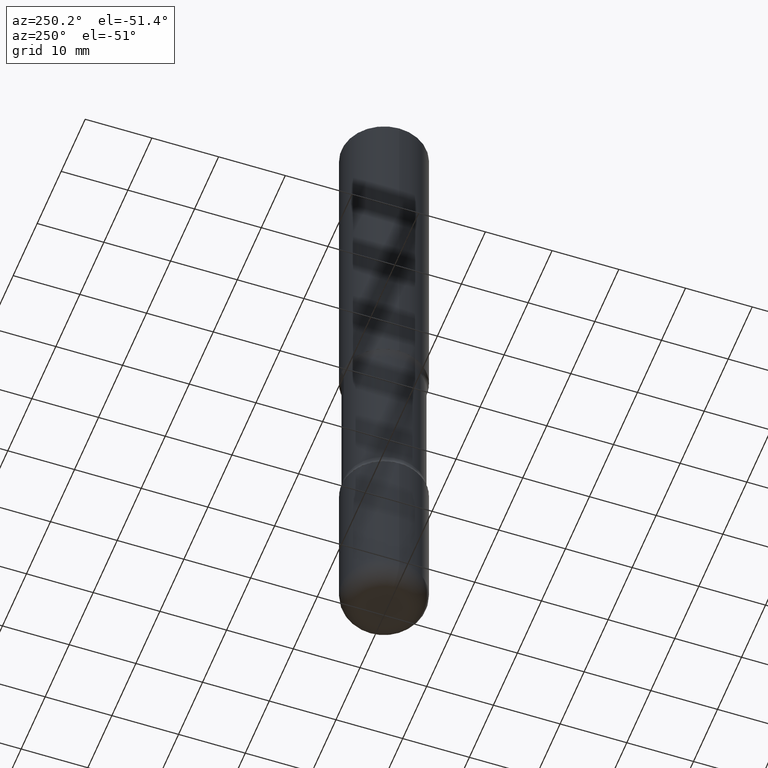
[diagram: clean part render]
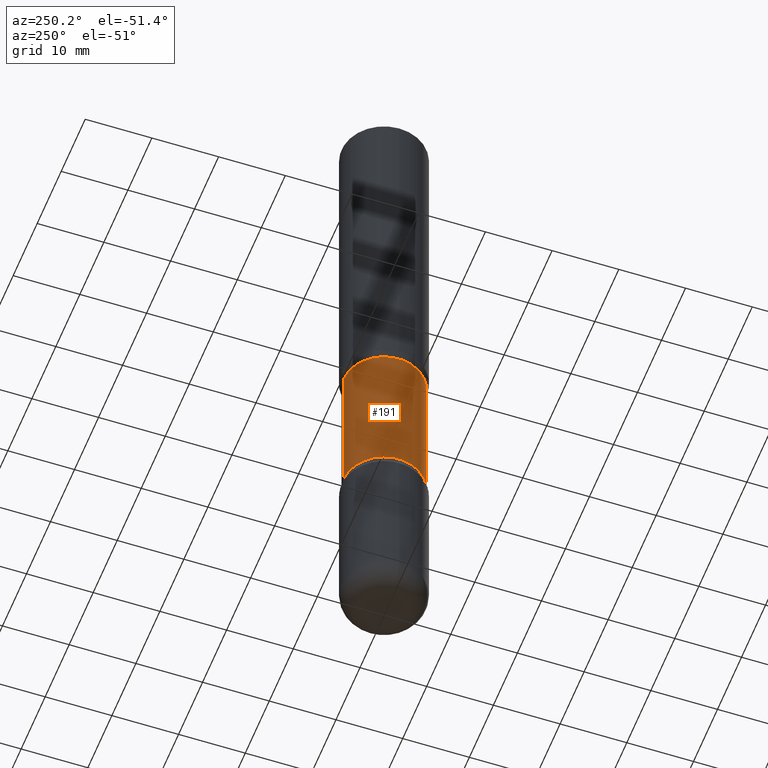
[diagram: same view with one face highlighted and labeled with its STEP entity id]
A machine part, auxiliary view. The second image highlights one B-rep face of the part: STEP entity #191.
In plain terms, the highlighted cylindrical surface (partial cylindrical patch) has radius 6.0325 mm, axis along (0, -0, -1).
Its self-contained STEP definition (entity closure, byte-faithful):
#42 = DIRECTION ( 'NONE',  ( 2.530378452311521502E-29, -3.369885892833230986E-15, -1.000000000000000000 ) ) ;
#50 = CIRCLE ( 'NONE', #444, 0.2375000000000000722 ) ;
#97 = VECTOR ( 'NONE', #307, 39.37007874015748143 ) ;
#104 = ORIENTED_EDGE ( 'NONE', *, *, #299, .T. ) ;
#115 = CARTESIAN_POINT ( 'NONE',  ( 9.866784870866931853E-29, -1.384432990936266734E-14, -4.000000000000000000 ) ) ;
#131 = LINE ( 'NONE', #468, #97 ) ;
#134 = ORIENTED_EDGE ( 'NONE', *, *, #245, .F. ) ;
#179 = VERTEX_POINT ( 'NONE', #446 ) ;
#184 = DIRECTION ( 'NONE',  ( 6.982962677686265133E-15, 1.000000000000000000, -2.300503573612010239E-15 ) ) ;
#191 = ADVANCED_FACE ( 'NONE', ( #287 ), #465, .T. ) ;
#212 = CARTESIAN_POINT ( 'NONE',  ( -1.629368274470640415E-15, -0.2375000000000139222, -3.999999999999999556 ) ) ;
#230 = VECTOR ( 'NONE', #509, 39.37007874015748143 ) ;
#242 = AXIS2_PLACEMENT_3D ( 'NONE', #115, #558, #461 ) ;
#245 = EDGE_CURVE ( 'NONE', #179, #403, #552, .T. ) ;
#262 = CARTESIAN_POINT ( 'NONE',  ( 4.943898765775623630E-29, -7.288170524422749615E-15, -2.054486236794258680 ) ) ;
#287 = FACE_OUTER_BOUND ( 'NONE', #511, .T. ) ;
#294 = EDGE_CURVE ( 'NONE', #403, #367, #50, .T. ) ;
#299 = EDGE_CURVE ( 'NONE', #316, #367, #131, .T. ) ;
#305 = DIRECTION ( 'NONE',  ( 6.982962677686265133E-15, 1.000000000000000000, -3.450755360418014766E-15 ) ) ;
#307 = DIRECTION ( 'NONE',  ( 2.530378452311521502E-29, -3.369885892833230592E-15, -1.000000000000000000 ) ) ;
#308 = CARTESIAN_POINT ( 'NONE',  ( 1.658453635950560525E-15, 0.2374999999999897748, -2.945513763205741764 ) ) ;
#316 = VERTEX_POINT ( 'NONE', #354 ) ;
#323 = CIRCLE ( 'NONE', #555, 0.2375000000000001277 ) ;
#353 = ORIENTED_EDGE ( 'NONE', *, *, #467, .T. ) ;
#354 = CARTESIAN_POINT ( 'NONE',  ( 1.658453635950538436E-15, 0.2374999999999928557, -2.054486236794259568 ) ) ;
#367 = VERTEX_POINT ( 'NONE', #308 ) ;
#403 = VERTEX_POINT ( 'NONE', #480 ) ;
#442 = ORIENTED_EDGE ( 'NONE', *, *, #294, .F. ) ;
#444 = AXIS2_PLACEMENT_3D ( 'NONE', #525, #475, #184 ) ;
#446 = CARTESIAN_POINT ( 'NONE',  ( -1.672246386956763723E-15, -0.2375000000000074274, -2.054486236794258236 ) ) ;
#461 = DIRECTION ( 'NONE',  ( 6.982962677686265133E-15, 1.000000000000000000, -2.300503573612010239E-15 ) ) ;
#465 = CYLINDRICAL_SURFACE ( 'NONE', #242, 0.2375000000000000999 ) ;
#467 = EDGE_CURVE ( 'NONE', #179, #316, #323, .T. ) ;
#468 = CARTESIAN_POINT ( 'NONE',  ( 1.658453635950587543E-15, 0.2374999999999862776, -4.000000000000000888 ) ) ;
#475 = DIRECTION ( 'NONE',  ( 2.530378452311521502E-29, -3.369885892833230986E-15, -1.000000000000000000 ) ) ;
#480 = CARTESIAN_POINT ( 'NONE',  ( -1.672246386956739071E-15, -0.2375000000000103417, -2.945513763205740876 ) ) ;
#509 = DIRECTION ( 'NONE',  ( 2.530378452311521502E-29, -3.369885892833230592E-15, -1.000000000000000000 ) ) ;
#511 = EDGE_LOOP ( 'NONE', ( #134, #353, #104, #442 ) ) ;
#525 = CARTESIAN_POINT ( 'NONE',  ( 7.198535619023675570E-29, -1.029083161580289368E-14, -2.945513763205741320 ) ) ;
#552 = LINE ( 'NONE', #212, #230 ) ;
#555 = AXIS2_PLACEMENT_3D ( 'NONE', #262, #42, #305 ) ;
#558 = DIRECTION ( 'NONE',  ( 2.530378452311521502E-29, -3.369885892833230986E-15, -1.000000000000000000 ) ) ;